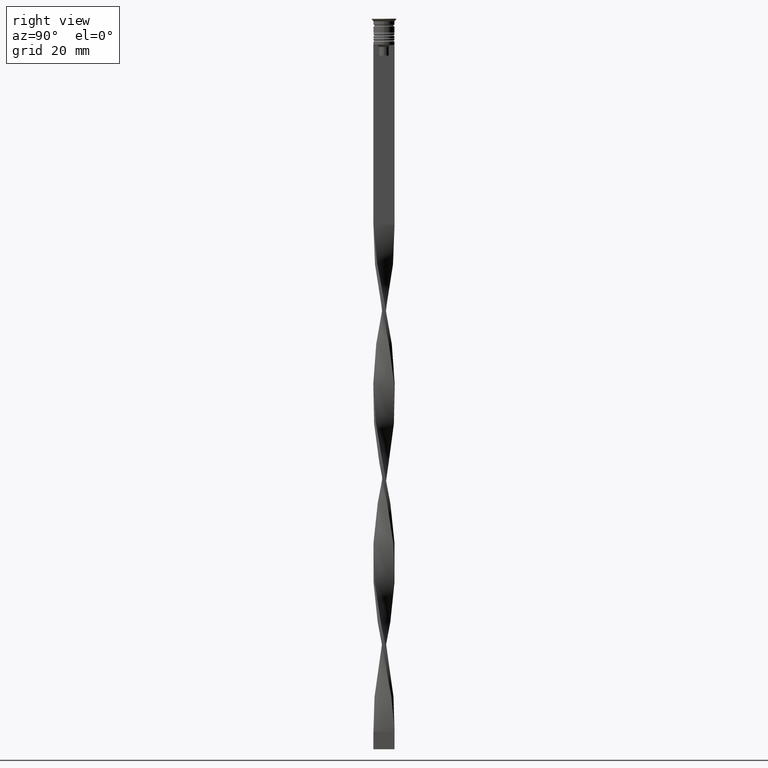
[diagram: clean part render]
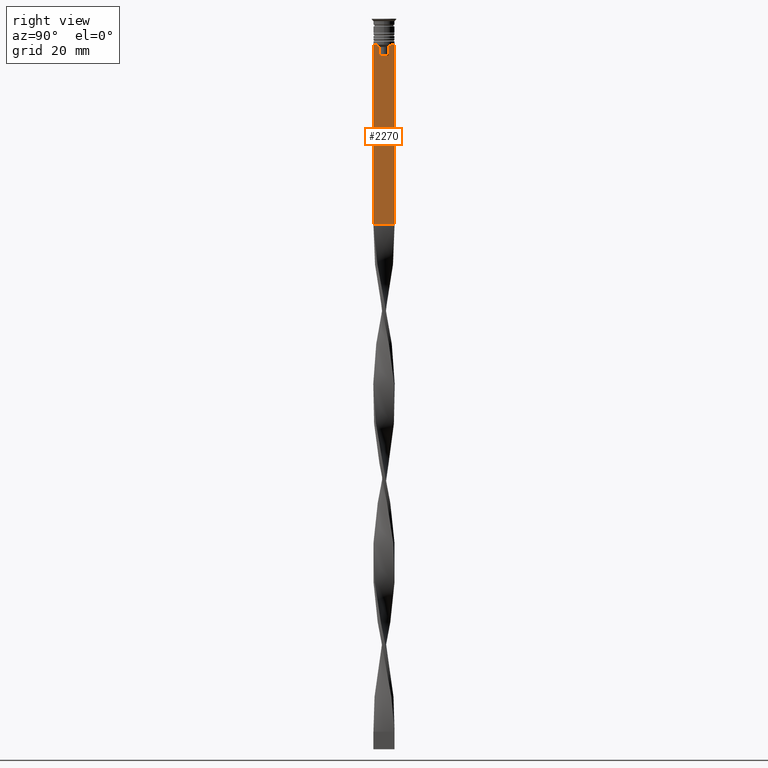
[diagram: same view with one face highlighted and labeled with its STEP entity id]
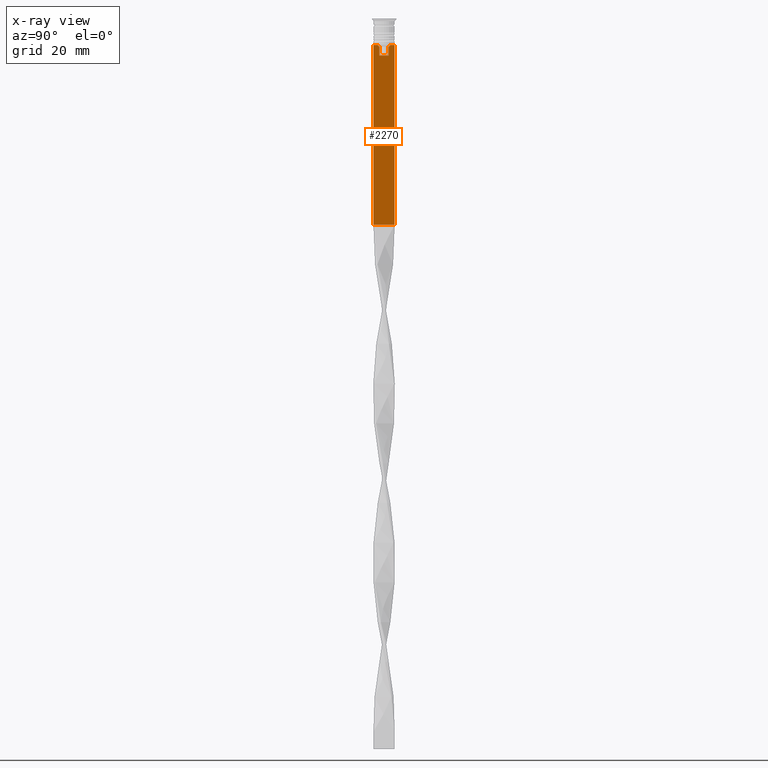
[diagram: x-ray of the same camera — body ghosted, the highlighted face saturated]
A machine part, right view. The second image highlights one B-rep face of the part: STEP entity #2270.
The next image is the same camera in x-ray: the body ghosted, the highlighted face saturated — about 0% of this face is hidden behind the body in this view.
In plain terms, the highlighted planar face has unit normal (-1, 0, 0).
Its self-contained STEP definition (entity closure, byte-faithful):
#22 = DIRECTION ( 'NONE',  ( 0.000000000000000000, -1.000000000000000000, 0.000000000000000000 ) ) ;
#47 = CARTESIAN_POINT ( 'NONE',  ( 0.4999999999999998890, 3.000000000000000000, -58.50000000000000000 ) ) ;
#51 = DIRECTION ( 'NONE',  ( 0.000000000000000000, 1.000000000000000000, 0.000000000000000000 ) ) ;
#65 = EDGE_CURVE ( 'NONE', #1920, #1249, #1499, .T. ) ;
#107 = VERTEX_POINT ( 'NONE', #3572 ) ;
#115 = DIRECTION ( 'NONE',  ( 0.000000000000000000, -1.000000000000000000, 0.000000000000000000 ) ) ;
#126 = CARTESIAN_POINT ( 'NONE',  ( 0.4999999999999998890, 2.856571371417139904, -7.500000000000000000 ) ) ;
#193 = CARTESIAN_POINT ( 'NONE',  ( 0.4999999999999998890, 3.000000000000000000, -1.417237469701779329 ) ) ;
#206 = EDGE_LOOP ( 'NONE', ( #3502, #1563, #744, #1219, #1708, #808, #1491, #725, #3670, #1528, #1215, #642 ) ) ;
#264 = EDGE_CURVE ( 'NONE', #107, #2957, #643, .T. ) ;
#317 = VERTEX_POINT ( 'NONE', #2827 ) ;
#334 = VECTOR ( 'NONE', #2918, 1000.000000000000000 ) ;
#363 = CARTESIAN_POINT ( 'NONE',  ( 0.4999999999999998890, 1.307669683062199439, 0.000000000000000000 ) ) ;
#404 = DIRECTION ( 'NONE',  ( 0.000000000000000000, 0.000000000000000000, 1.000000000000000000 ) ) ;
#475 = CARTESIAN_POINT ( 'NONE',  ( 0.4999999999999998890, 1.659046061654642967, -7.667851756010362507 ) ) ;
#542 = DIRECTION ( 'NONE',  ( 0.000000000000000000, 0.000000000000000000, -1.000000000000000000 ) ) ;
#562 = DIRECTION ( 'NONE',  ( 0.000000000000000000, 0.000000000000000000, -1.000000000000000000 ) ) ;
#577 = EDGE_CURVE ( 'NONE', #2957, #1034, #1506, .T. ) ;
#580 = CARTESIAN_POINT ( 'NONE',  ( 0.4999999999999998890, -1.833030277982335754, -7.500000000000000000 ) ) ;
#612 = CARTESIAN_POINT ( 'NONE',  ( 0.4999999999999998890, -1.307669683062199439, 0.000000000000000000 ) ) ;
#629 = EDGE_CURVE ( 'NONE', #1249, #317, #2071, .T. ) ;
#642 = ORIENTED_EDGE ( 'NONE', *, *, #2243, .T. ) ;
#643 = B_SPLINE_CURVE_WITH_KNOTS ( 'NONE', 3,
 ( #3569, #3327, #728, #2256 ),
 .UNSPECIFIED., .F., .F.,
 ( 4, 4 ),
 ( 0.007225659348748082224, 0.007950554640278054835 ),
 .UNSPECIFIED. ) ;
#725 = ORIENTED_EDGE ( 'NONE', *, *, #740, .T. ) ;
#728 = CARTESIAN_POINT ( 'NONE',  ( 0.4999999999999998890, -1.659011726860414093, -7.667884880598472286 ) ) ;
#740 = EDGE_CURVE ( 'NONE', #1034, #1408, #1012, .T. ) ;
#744 = ORIENTED_EDGE ( 'NONE', *, *, #629, .T. ) ;
#808 = ORIENTED_EDGE ( 'NONE', *, *, #264, .T. ) ;
#810 = VECTOR ( 'NONE', #562, 1000.000000000000000 ) ;
#835 = CARTESIAN_POINT ( 'NONE',  ( 0.4999999999999998890, 1.833030277982335754, -7.500000000000000000 ) ) ;
#871 = LINE ( 'NONE', #2615, #1776 ) ;
#926 = VECTOR ( 'NONE', #542, 1000.000000000000000 ) ;
#964 = EDGE_CURVE ( 'NONE', #2396, #2067, #3370, .T. ) ;
#1012 = LINE ( 'NONE', #3553, #1298 ) ;
#1032 = CARTESIAN_POINT ( 'NONE',  ( 0.4999999999999998890, -2.856571371417139904, -7.500000000000000000 ) ) ;
#1033 = LINE ( 'NONE', #3332, #1542 ) ;
#1034 = VERTEX_POINT ( 'NONE', #1032 ) ;
#1215 = ORIENTED_EDGE ( 'NONE', *, *, #964, .F. ) ;
#1219 = ORIENTED_EDGE ( 'NONE', *, *, #2914, .T. ) ;
#1249 = VERTEX_POINT ( 'NONE', #1701 ) ;
#1254 = EDGE_CURVE ( 'NONE', #2562, #2067, #871, .T. ) ;
#1275 = EDGE_CURVE ( 'NONE', #2566, #107, #2354, .T. ) ;
#1298 = VECTOR ( 'NONE', #115, 1000.000000000000000 ) ;
#1332 = DIRECTION ( 'NONE',  ( 0.000000000000000000, -1.000000000000000000, 0.000000000000000000 ) ) ;
#1408 = VERTEX_POINT ( 'NONE', #2739 ) ;
#1486 = LINE ( 'NONE', #2619, #3122 ) ;
#1491 = ORIENTED_EDGE ( 'NONE', *, *, #577, .T. ) ;
#1499 = B_SPLINE_CURVE_WITH_KNOTS ( 'NONE', 3,
 ( #3071, #475, #1616, #2788 ),
 .UNSPECIFIED., .F., .F.,
 ( 4, 4 ),
 ( 0.003278537493109848298, 0.004003794023484941178 ),
 .UNSPECIFIED. ) ;
#1506 = LINE ( 'NONE', #2954, #334 ) ;
#1508 = VERTEX_POINT ( 'NONE', #126 ) ;
#1528 = ORIENTED_EDGE ( 'NONE', *, *, #1254, .T. ) ;
#1542 = VECTOR ( 'NONE', #1561, 1000.000000000000000 ) ;
#1561 = DIRECTION ( 'NONE',  ( 0.000000000000000000, -1.000000000000000000, 0.000000000000000000 ) ) ;
#1563 = ORIENTED_EDGE ( 'NONE', *, *, #65, .T. ) ;
#1584 = CARTESIAN_POINT ( 'NONE',  ( 0.4999999999999998890, -3.000000000000000000, -1.417237469701779329 ) ) ;
#1616 = CARTESIAN_POINT ( 'NONE',  ( 0.4999999999999998890, 1.484355510416485835, -7.834966642958598015 ) ) ;
#1701 = CARTESIAN_POINT ( 'NONE',  ( 0.4999999999999998890, 1.307669683062199439, -8.000000000000000000 ) ) ;
#1708 = ORIENTED_EDGE ( 'NONE', *, *, #1275, .T. ) ;
#1776 = VECTOR ( 'NONE', #51, 1000.000000000000000 ) ;
#1809 = CARTESIAN_POINT ( 'NONE',  ( 0.4999999999999998890, -3.000000000000000000, -58.50000000000000000 ) ) ;
#1833 = DIRECTION ( 'NONE',  ( -1.000000000000000000, 0.000000000000000000, 0.000000000000000000 ) ) ;
#1853 = EDGE_CURVE ( 'NONE', #1408, #2562, #3711, .T. ) ;
#1858 = LINE ( 'NONE', #2736, #1909 ) ;
#1909 = VECTOR ( 'NONE', #1332, 1000.000000000000000 ) ;
#1920 = VERTEX_POINT ( 'NONE', #835 ) ;
#2049 = DIRECTION ( 'NONE',  ( -0.000000000000000000, -0.000000000000000000, 1.000000000000000000 ) ) ;
#2067 = VERTEX_POINT ( 'NONE', #47 ) ;
#2071 = LINE ( 'NONE', #363, #810 ) ;
#2243 = EDGE_CURVE ( 'NONE', #2396, #1508, #1858, .T. ) ;
#2252 = CARTESIAN_POINT ( 'NONE',  ( 0.4999999999999998890, -3.000000000000000000, -1.417237469701779329 ) ) ;
#2256 = CARTESIAN_POINT ( 'NONE',  ( 0.4999999999999998890, -1.833030277982335754, -7.500000000000000000 ) ) ;
#2270 = ADVANCED_FACE ( 'NONE', ( #2794 ), #3630, .F. ) ;
#2354 = LINE ( 'NONE', #612, #3056 ) ;
#2396 = VERTEX_POINT ( 'NONE', #3144 ) ;
#2562 = VERTEX_POINT ( 'NONE', #1809 ) ;
#2566 = VERTEX_POINT ( 'NONE', #2919 ) ;
#2587 = DIRECTION ( 'NONE',  ( 0.000000000000000000, 0.000000000000000000, -1.000000000000000000 ) ) ;
#2615 = CARTESIAN_POINT ( 'NONE',  ( 0.4999999999999998890, -3.000000000000000000, -58.50000000000000000 ) ) ;
#2619 = CARTESIAN_POINT ( 'NONE',  ( 0.4999999999999998890, -3.000000000000000000, -7.500000000000000000 ) ) ;
#2736 = CARTESIAN_POINT ( 'NONE',  ( 0.4999999999999998890, -3.000000000000000000, -7.500000000000000000 ) ) ;
#2739 = CARTESIAN_POINT ( 'NONE',  ( 0.4999999999999998890, -3.000000000000000000, -7.500000000000000000 ) ) ;
#2788 = CARTESIAN_POINT ( 'NONE',  ( 0.4999999999999998890, 1.307669683062199439, -8.000000000000000000 ) ) ;
#2794 = FACE_OUTER_BOUND ( 'NONE', #206, .T. ) ;
#2827 = CARTESIAN_POINT ( 'NONE',  ( 0.4999999999999998890, 1.307669683062199439, -10.49999999999999822 ) ) ;
#2914 = EDGE_CURVE ( 'NONE', #317, #2566, #1033, .T. ) ;
#2918 = DIRECTION ( 'NONE',  ( 0.000000000000000000, -1.000000000000000000, 0.000000000000000000 ) ) ;
#2919 = CARTESIAN_POINT ( 'NONE',  ( 0.4999999999999998890, -1.307669683062199439, -10.49999999999999822 ) ) ;
#2954 = CARTESIAN_POINT ( 'NONE',  ( 0.4999999999999998890, -3.000000000000000000, -7.500000000000000000 ) ) ;
#2957 = VERTEX_POINT ( 'NONE', #580 ) ;
#2963 = EDGE_CURVE ( 'NONE', #1508, #1920, #1486, .T. ) ;
#2997 = VECTOR ( 'NONE', #2587, 1000.000000000000000 ) ;
#3056 = VECTOR ( 'NONE', #2049, 1000.000000000000000 ) ;
#3071 = CARTESIAN_POINT ( 'NONE',  ( 0.4999999999999998890, 1.833030277982335754, -7.500000000000000000 ) ) ;
#3122 = VECTOR ( 'NONE', #22, 1000.000000000000000 ) ;
#3144 = CARTESIAN_POINT ( 'NONE',  ( 0.4999999999999998890, 3.000000000000000000, -7.500000000000000000 ) ) ;
#3327 = CARTESIAN_POINT ( 'NONE',  ( 0.4999999999999998890, -1.484307477388859153, -7.835011508197190722 ) ) ;
#3332 = CARTESIAN_POINT ( 'NONE',  ( 0.4999999999999998890, 1.399999999999997691, -10.49999999999999822 ) ) ;
#3370 = LINE ( 'NONE', #193, #926 ) ;
#3484 = AXIS2_PLACEMENT_3D ( 'NONE', #1584, #1833, #404 ) ;
#3502 = ORIENTED_EDGE ( 'NONE', *, *, #2963, .T. ) ;
#3553 = CARTESIAN_POINT ( 'NONE',  ( 0.4999999999999998890, -3.000000000000000000, -7.500000000000000000 ) ) ;
#3569 = CARTESIAN_POINT ( 'NONE',  ( 0.4999999999999998890, -1.307669683062199439, -8.000000000000000000 ) ) ;
#3572 = CARTESIAN_POINT ( 'NONE',  ( 0.4999999999999998890, -1.307669683062199439, -8.000000000000000000 ) ) ;
#3630 = PLANE ( 'NONE',  #3484 ) ;
#3670 = ORIENTED_EDGE ( 'NONE', *, *, #1853, .T. ) ;
#3711 = LINE ( 'NONE', #2252, #2997 ) ;